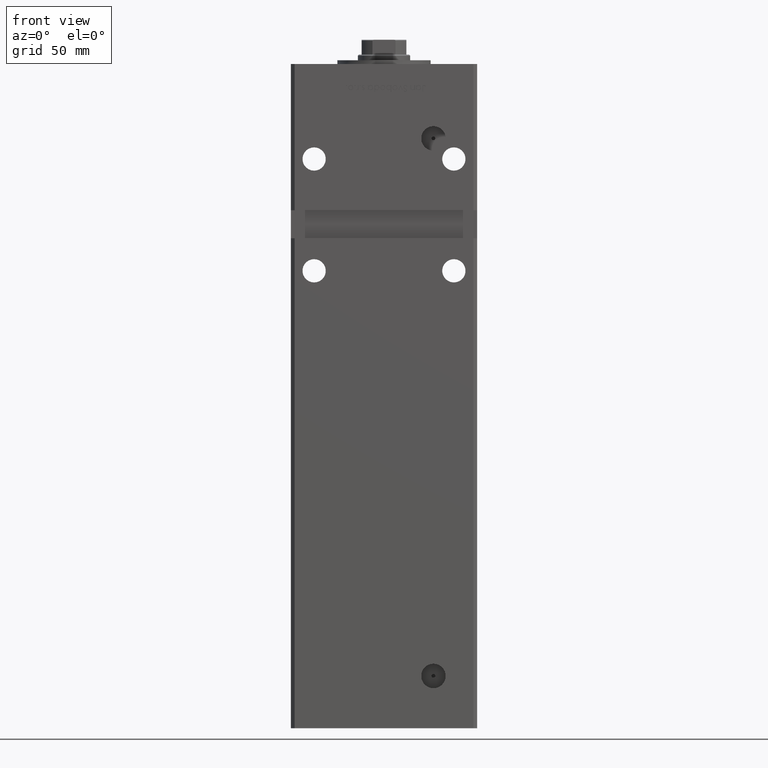
[diagram: clean part render]
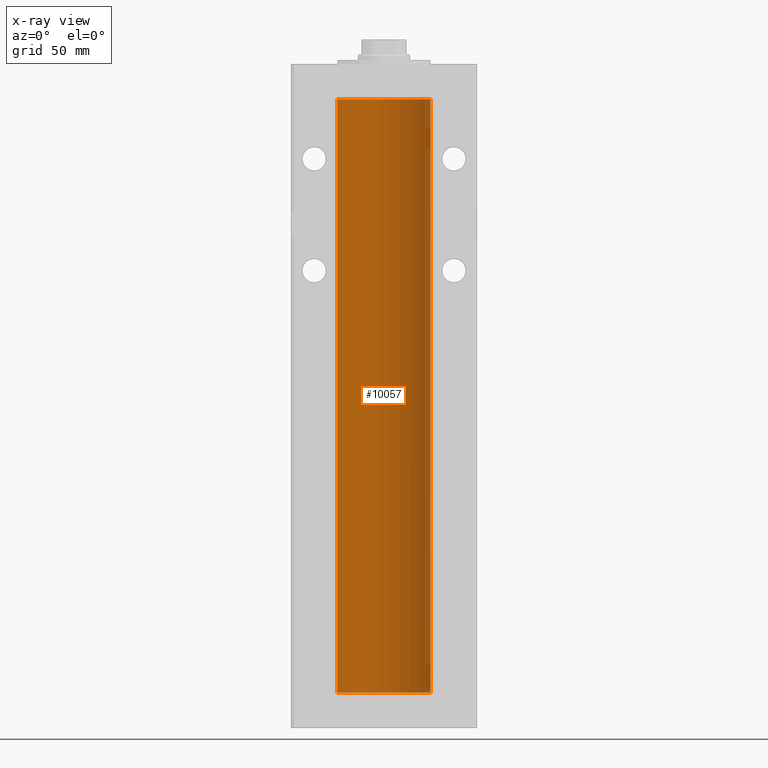
[diagram: x-ray — body ghosted, one internal face saturated and labeled with its STEP entity id]
A machine part, front view, then the same camera in x-ray: the body is ghosted and one INTERNAL B-rep face — a face not visible from any outside direction — is saturated and labeled: STEP entity #10057.
In plain terms, the highlighted cylindrical surface (partial cylindrical patch) has radius 25 mm, axis along (-0, -0, -1).
Its self-contained STEP definition (entity closure, byte-faithful):
#308 = DIRECTION ( 'NONE',  ( -0.000000000000000000, -0.000000000000000000, -1.000000000000000000 ) ) ;
#838 = LINE ( 'NONE', #33053, #1685 ) ;
#1685 = VECTOR ( 'NONE', #308, 1000.000000000000000 ) ;
#2257 = CARTESIAN_POINT ( 'NONE',  ( 25.00000000000000000, 3.061616997868383043E-15, 318.5000000000000000 ) ) ;
#3658 = VECTOR ( 'NONE', #17554, 1000.000000000000000 ) ;
#4058 = EDGE_CURVE ( 'NONE', #29018, #18444, #46805, .T. ) ;
#4819 = FACE_OUTER_BOUND ( 'NONE', #13383, .T. ) ;
#6820 = DIRECTION ( 'NONE',  ( 1.000000000000000000, 0.000000000000000000, 0.000000000000000000 ) ) ;
#6911 = AXIS2_PLACEMENT_3D ( 'NONE', #31235, #47657, #6820 ) ;
#9003 = CARTESIAN_POINT ( 'NONE',  ( -25.00000000000000000, 0.000000000000000000, 318.5000000000000000 ) ) ;
#9058 = AXIS2_PLACEMENT_3D ( 'NONE', #52832, #52566, #22973 ) ;
#10057 = ADVANCED_FACE ( 'NONE', ( #4819 ), #45915, .F. ) ;
#13383 = EDGE_LOOP ( 'NONE', ( #20588, #44634, #27178, #46543 ) ) ;
#14175 = EDGE_CURVE ( 'NONE', #41438, #34468, #38621, .T. ) ;
#17554 = DIRECTION ( 'NONE',  ( -0.000000000000000000, -0.000000000000000000, -1.000000000000000000 ) ) ;
#18444 = VERTEX_POINT ( 'NONE', #25717 ) ;
#18769 = AXIS2_PLACEMENT_3D ( 'NONE', #37102, #24751, #20199 ) ;
#20199 = DIRECTION ( 'NONE',  ( -1.000000000000000000, 0.000000000000000000, 0.000000000000000000 ) ) ;
#20588 = ORIENTED_EDGE ( 'NONE', *, *, #23348, .F. ) ;
#22637 = LINE ( 'NONE', #2257, #3658 ) ;
#22973 = DIRECTION ( 'NONE',  ( 1.000000000000000000, 0.000000000000000000, 0.000000000000000000 ) ) ;
#23348 = EDGE_CURVE ( 'NONE', #41438, #29018, #22637, .T. ) ;
#24751 = DIRECTION ( 'NONE',  ( -0.000000000000000000, -0.000000000000000000, -1.000000000000000000 ) ) ;
#25717 = CARTESIAN_POINT ( 'NONE',  ( -25.00000000000000000, 0.000000000000000000, 0.000000000000000000 ) ) ;
#27178 = ORIENTED_EDGE ( 'NONE', *, *, #50528, .T. ) ;
#29018 = VERTEX_POINT ( 'NONE', #37542 ) ;
#31235 = CARTESIAN_POINT ( 'NONE',  ( 0.000000000000000000, 0.000000000000000000, 318.5000000000000000 ) ) ;
#33053 = CARTESIAN_POINT ( 'NONE',  ( -25.00000000000000000, 0.000000000000000000, 318.5000000000000000 ) ) ;
#34468 = VERTEX_POINT ( 'NONE', #9003 ) ;
#37102 = CARTESIAN_POINT ( 'NONE',  ( 0.000000000000000000, 0.000000000000000000, 318.5000000000000000 ) ) ;
#37542 = CARTESIAN_POINT ( 'NONE',  ( 25.00000000000000000, 3.061616997868383043E-15, 0.000000000000000000 ) ) ;
#38621 = CIRCLE ( 'NONE', #6911, 25.00000000000000000 ) ;
#41438 = VERTEX_POINT ( 'NONE', #46432 ) ;
#44634 = ORIENTED_EDGE ( 'NONE', *, *, #14175, .T. ) ;
#45915 = CYLINDRICAL_SURFACE ( 'NONE', #18769, 25.00000000000000000 ) ;
#46432 = CARTESIAN_POINT ( 'NONE',  ( 25.00000000000000000, 3.061616997868383043E-15, 318.5000000000000000 ) ) ;
#46543 = ORIENTED_EDGE ( 'NONE', *, *, #4058, .F. ) ;
#46805 = CIRCLE ( 'NONE', #9058, 25.00000000000000000 ) ;
#47657 = DIRECTION ( 'NONE',  ( -0.000000000000000000, 0.000000000000000000, 1.000000000000000000 ) ) ;
#50528 = EDGE_CURVE ( 'NONE', #34468, #18444, #838, .T. ) ;
#52566 = DIRECTION ( 'NONE',  ( -0.000000000000000000, 0.000000000000000000, 1.000000000000000000 ) ) ;
#52832 = CARTESIAN_POINT ( 'NONE',  ( 0.000000000000000000, 0.000000000000000000, 0.000000000000000000 ) ) ;